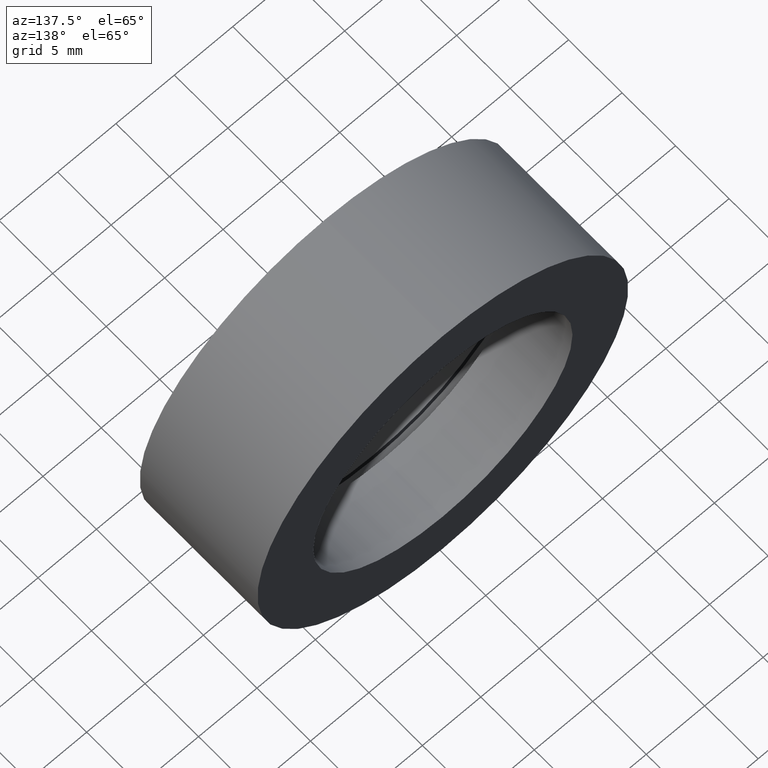
[diagram: clean part render]
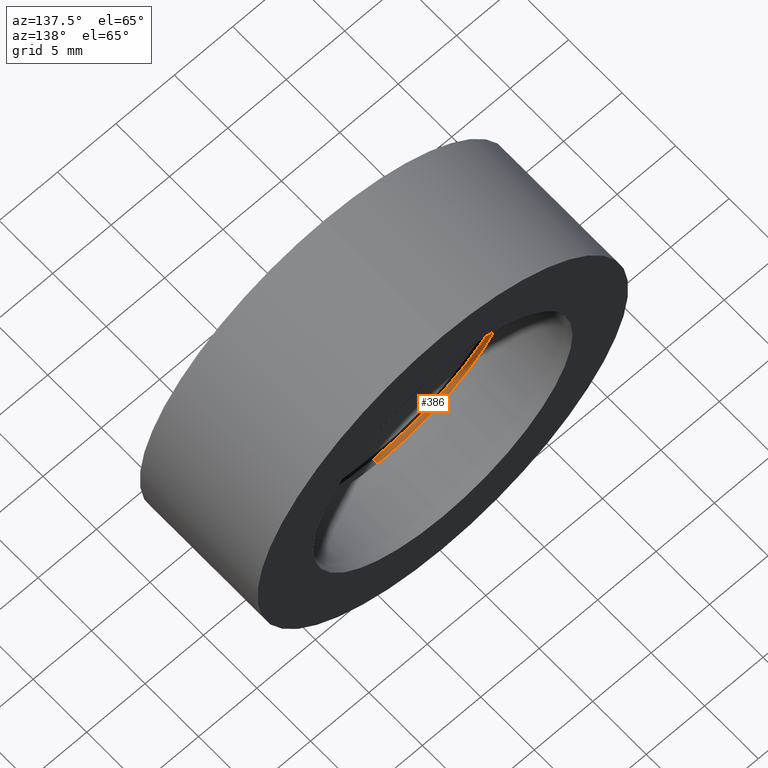
[diagram: same view with one face highlighted and labeled with its STEP entity id]
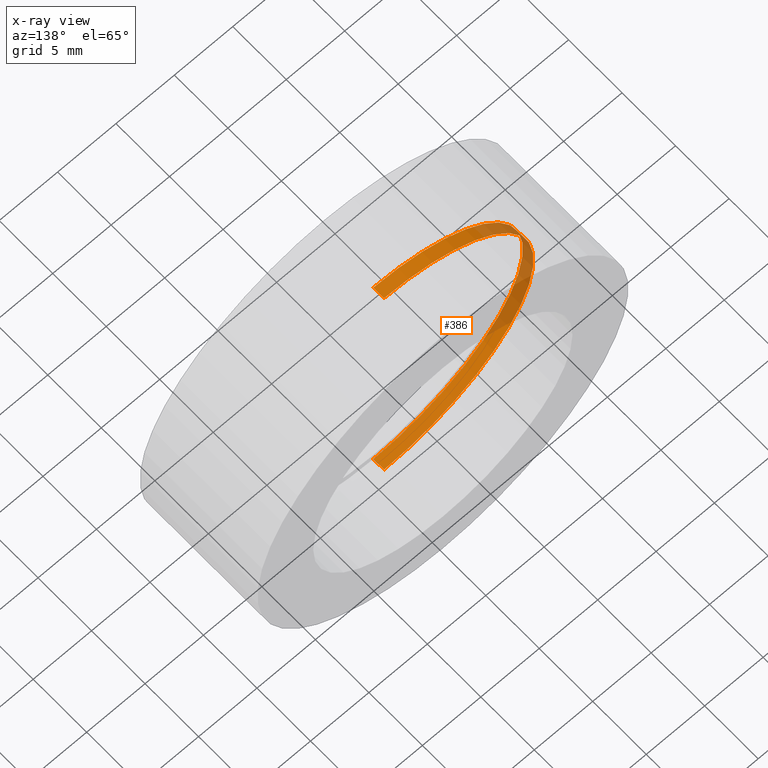
[diagram: x-ray of the same camera — body ghosted, the highlighted face saturated]
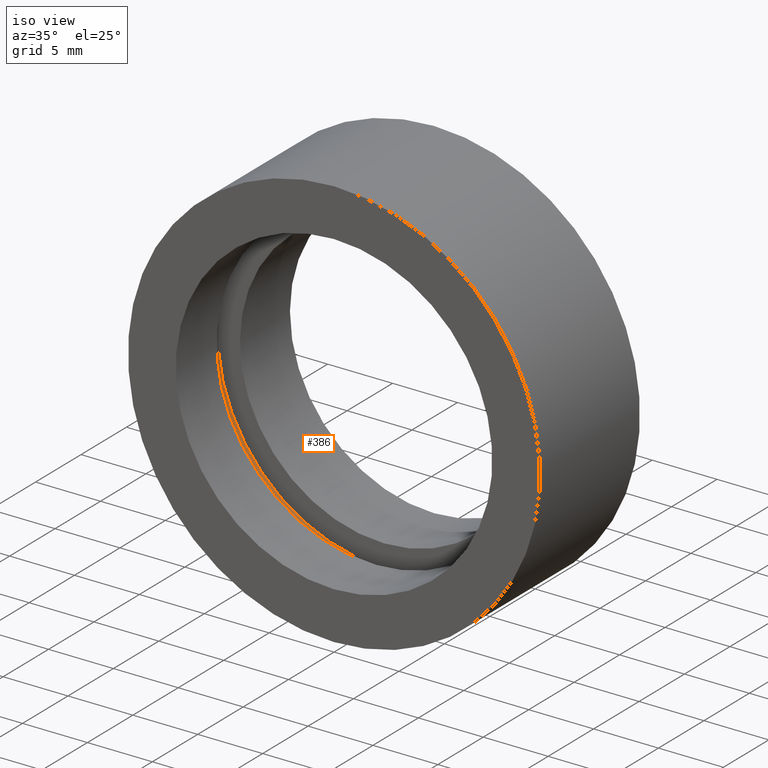
[diagram: same view with one face highlighted and labeled with its STEP entity id]
A machine part, auxiliary view. The second image highlights one B-rep face of the part: STEP entity #386.
The next image is the same camera in x-ray: the body ghosted, the highlighted face saturated — about 27% of this face is hidden behind the body in this view.
A second angle (iso view) of the same face is appended — the face is thin or edge-on in the first view.
In plain terms, the highlighted cylindrical surface (partial cylindrical patch) has radius 12.8 mm, axis along (-0, 1, -0).
Its self-contained STEP definition (entity closure, byte-faithful):
#2 = CARTESIAN_POINT ( 'NONE',  ( 0.0000000000000000000, 4.499999999999997300, 12.80000000000001000 ) ) ;
#13 = VECTOR ( 'NONE', #92, 1000.000000000000000 ) ;
#21 = CYLINDRICAL_SURFACE ( 'NONE', #49, 12.80000000000001000 ) ;
#22 = EDGE_CURVE ( 'NONE', #359, #304, #164, .T. ) ;
#28 = CARTESIAN_POINT ( 'NONE',  ( 1.567547902908613400E-015, 60.02082041425541100, -12.80000000000001000 ) ) ;
#36 = DIRECTION ( 'NONE',  ( 0.0000000000000000000, 0.0000000000000000000, 1.000000000000000000 ) ) ;
#43 = VERTEX_POINT ( 'NONE', #333 ) ;
#49 = AXIS2_PLACEMENT_3D ( 'NONE', #240, #118, #392 ) ;
#65 = DIRECTION ( 'NONE',  ( -0.0000000000000000000, 1.000000000000000000, -0.0000000000000000000 ) ) ;
#70 = ORIENTED_EDGE ( 'NONE', *, *, #91, .T. ) ;
#72 = CARTESIAN_POINT ( 'NONE',  ( 0.0000000000000000000, 5.499999999999998200, 0.0000000000000000000 ) ) ;
#85 = VERTEX_POINT ( 'NONE', #2 ) ;
#91 = EDGE_CURVE ( 'NONE', #304, #43, #426, .T. ) ;
#92 = DIRECTION ( 'NONE',  ( -0.0000000000000000000, 1.000000000000000000, -0.0000000000000000000 ) ) ;
#118 = DIRECTION ( 'NONE',  ( -0.0000000000000000000, 1.000000000000000000, -0.0000000000000000000 ) ) ;
#122 = EDGE_CURVE ( 'NONE', #85, #43, #300, .T. ) ;
#126 = ORIENTED_EDGE ( 'NONE', *, *, #210, .F. ) ;
#150 = ORIENTED_EDGE ( 'NONE', *, *, #122, .F. ) ;
#163 = AXIS2_PLACEMENT_3D ( 'NONE', #72, #338, #411 ) ;
#164 = LINE ( 'NONE', #28, #13 ) ;
#171 = FACE_OUTER_BOUND ( 'NONE', #365, .T. ) ;
#205 = CARTESIAN_POINT ( 'NONE',  ( 0.0000000000000000000, 4.499999999999997300, 0.0000000000000000000 ) ) ;
#210 = EDGE_CURVE ( 'NONE', #359, #85, #369, .T. ) ;
#240 = CARTESIAN_POINT ( 'NONE',  ( 0.0000000000000000000, 60.02082041425541100, 0.0000000000000000000 ) ) ;
#249 = ORIENTED_EDGE ( 'NONE', *, *, #22, .T. ) ;
#300 = LINE ( 'NONE', #340, #394 ) ;
#304 = VERTEX_POINT ( 'NONE', #317 ) ;
#306 = AXIS2_PLACEMENT_3D ( 'NONE', #205, #65, #36 ) ;
#317 = CARTESIAN_POINT ( 'NONE',  ( 1.567547902908613200E-015, 5.499999999999998200, -12.80000000000000800 ) ) ;
#333 = CARTESIAN_POINT ( 'NONE',  ( 0.0000000000000000000, 5.499999999999998200, 12.80000000000000800 ) ) ;
#338 = DIRECTION ( 'NONE',  ( -0.0000000000000000000, 1.000000000000000000, -0.0000000000000000000 ) ) ;
#340 = CARTESIAN_POINT ( 'NONE',  ( 0.0000000000000000000, 60.02082041425541100, 12.80000000000001000 ) ) ;
#345 = DIRECTION ( 'NONE',  ( -0.0000000000000000000, 1.000000000000000000, -0.0000000000000000000 ) ) ;
#359 = VERTEX_POINT ( 'NONE', #407 ) ;
#365 = EDGE_LOOP ( 'NONE', ( #126, #249, #70, #150 ) ) ;
#369 = CIRCLE ( 'NONE', #306, 12.80000000000001000 ) ;
#386 = ADVANCED_FACE ( 'NONE', ( #171 ), #21, .F. ) ;
#392 = DIRECTION ( 'NONE',  ( 0.0000000000000000000, 0.0000000000000000000, 1.000000000000000000 ) ) ;
#394 = VECTOR ( 'NONE', #345, 1000.000000000000000 ) ;
#407 = CARTESIAN_POINT ( 'NONE',  ( 1.567547902908613400E-015, 4.499999999999997300, -12.80000000000001000 ) ) ;
#411 = DIRECTION ( 'NONE',  ( 0.0000000000000000000, 0.0000000000000000000, 1.000000000000000000 ) ) ;
#426 = CIRCLE ( 'NONE', #163, 12.80000000000000800 ) ;